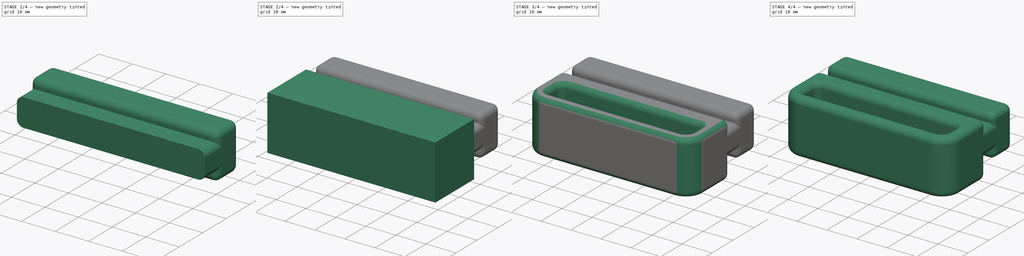
[diagram: build sequence overview — one tinted view per stage of 4, left to right]
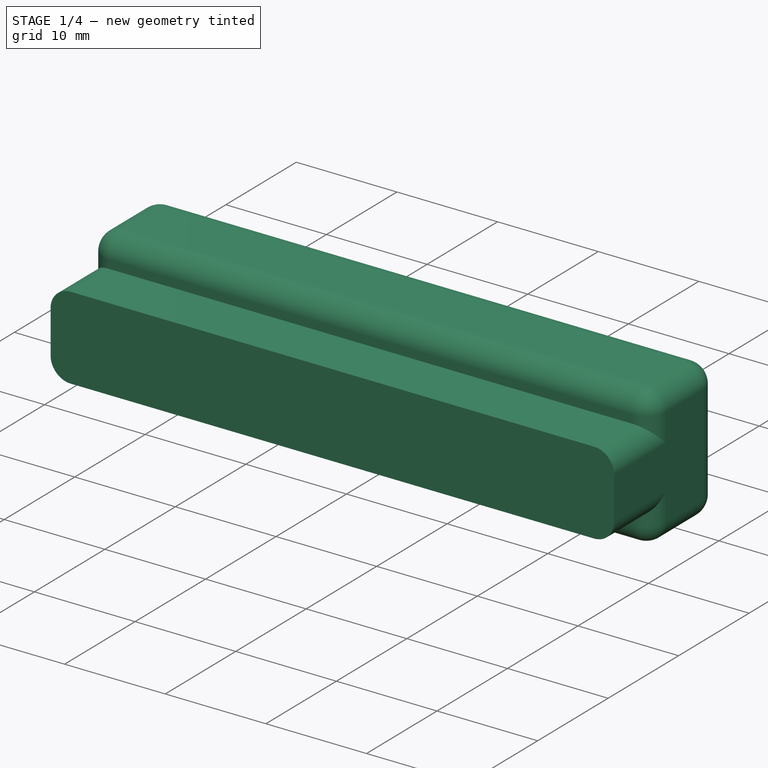
[diagram: stage 1 of 4 — iso view after this stage's code; geometry added in this stage tinted green]
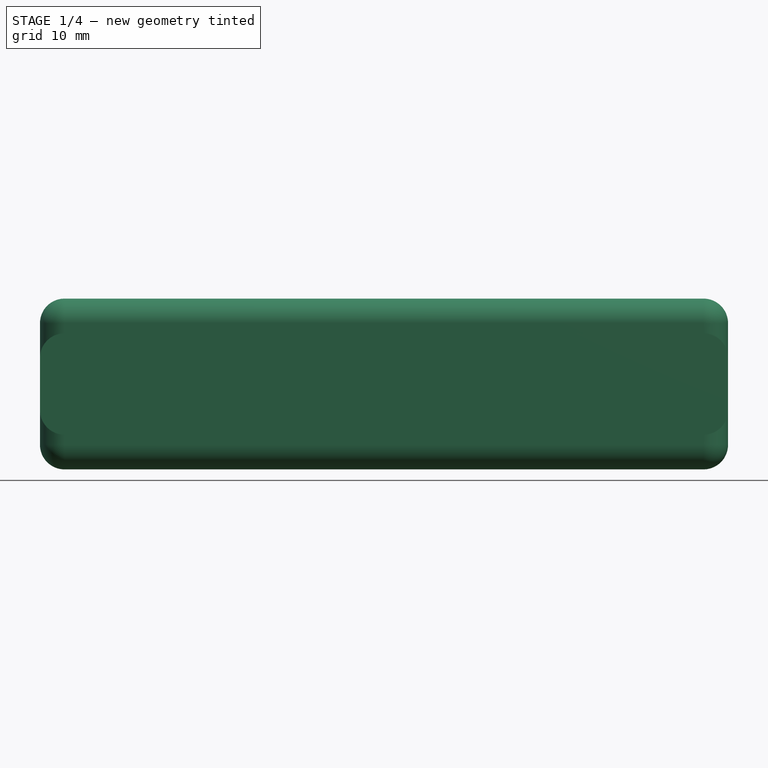
[diagram: stage 1 of 4 — front view after this stage's code; geometry added in this stage tinted green]
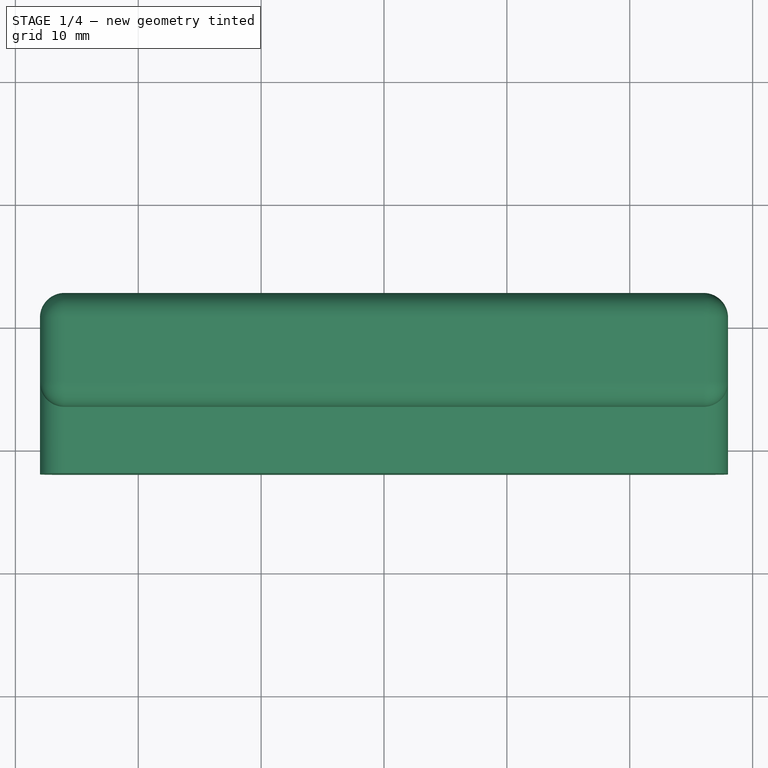
[diagram: stage 1 of 4 — top view after this stage's code; geometry added in this stage tinted green]
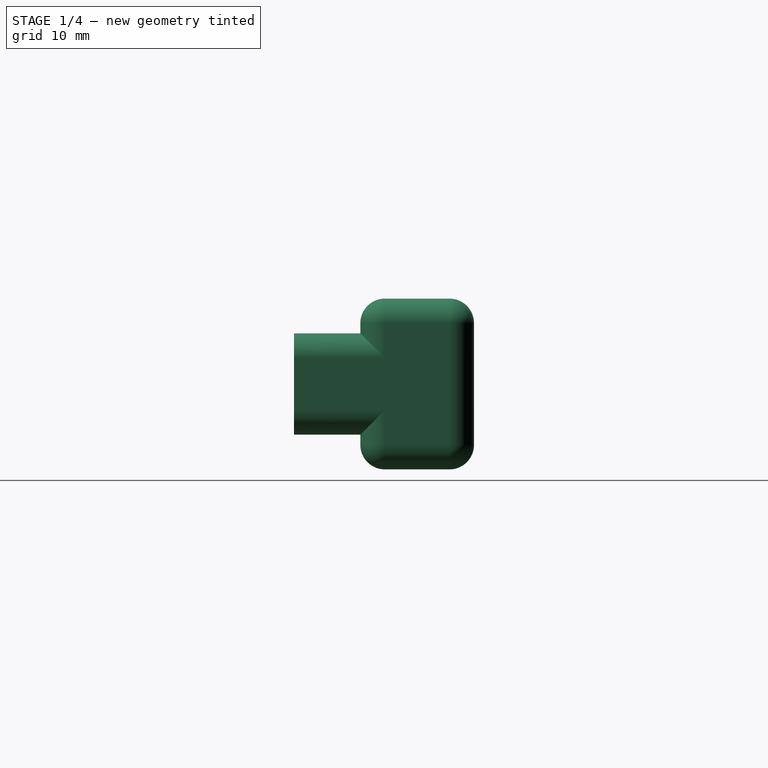
[diagram: stage 1 of 4 — right view after this stage's code; geometry added in this stage tinted green]
FCSTD DOCUMENT  (FreeCAD 0.21R33668 +26 (Git))
Label: FesseTouleRails
License: All rights reserved
LicenseURL: http://en.wikipedia.org/wiki/All_rights_reserved
objects: Sketcher::SketchObject×4, PartDesign::Fillet×3, PartDesign::Body×3, App::Part×3, PartDesign::Pad×2, App::Link×2, PartDesign::Pocket×2, Spreadsheet::Sheet×1, Part::MultiFuse×1, PartDesign::FeatureBase×1
note: 23 computed .brp shape members not serialized (recipe doc carries the construction recipe); baked Part::Feature solids carry a one-line shape summary decoded from their .brp

FEATURE [Spreadsheet::Sheet] Spreadsheet
  cells = A1='RailHeight; B1(RailHeight)=13.9; A2='RailDepth; B2(RailDepth)=9.25; A3='Width; B3(Width)=56; A4='GapDepth; B4(GapDepth)=3.4; A5='GapHeight; B5(GapHeight)=8.25; A6='Fillet; B6(Fillet)=2; A7='SocketWidth; B7(SocketWidth)=47.6; A8='SocketDepth; B8(SocketDepth)=7.9; A9='SocketOuterDepth; B9(SocketOuterDepth)=18.4; A10='SocketHeight; B10(SocketHeight)=18.1
FEATURE [Sketcher::SketchObject] Sketch  label="RailSketch"
  FullyConstrained = true
  MapMode = 5
  Placement = pos=(0,0,0) rot=(0.57735,0.57735,0.57735;2.0944rad)
  Support = -> [YZ_Plane001]
  expr: Constraints[22] = Spreadsheet.RailHeight
  expr: Constraints[23] = Spreadsheet.GapHeight
  expr: Constraints[24] = Spreadsheet.RailDepth
  expr: Constraints[25] = Spreadsheet.GapDepth + Spreadsheet.Fillet
  expr: Constraints[27] = Spreadsheet.Fillet
  sketch-geometry (10):
    g0: LineSegment StartX=-2 StartY=4.125 StartZ=0 EndX=3.4 EndY=4.125 EndZ=0
    g1: LineSegment StartX=3.4 StartY=4.125 StartZ=0 EndX=3.4 EndY=6.95 EndZ=0
    g2: LineSegment StartX=3.4 StartY=6.95 StartZ=0 EndX=12.65 EndY=6.95 EndZ=0
    g3: LineSegment StartX=12.65 StartY=6.95 StartZ=0 EndX=12.65 EndY=-6.95 EndZ=0
    g4: LineSegment StartX=12.65 StartY=-6.95 StartZ=0 EndX=3.4 EndY=-6.95 EndZ=0
    g5: LineSegment StartX=3.4 StartY=-6.95 StartZ=0 EndX=3.4 EndY=-4.125 EndZ=0
    g6: LineSegment StartX=3.4 StartY=-4.125 StartZ=0 EndX=-2 EndY=-4.125 EndZ=0
    g7: LineSegment StartX=-2 StartY=-4.125 StartZ=0 EndX=-2 EndY=4.125 EndZ=0
    g8: LineSegment StartX=0 StartY=0 StartZ=0 EndX=-2 EndY=4.125 EndZ=0
    g9: LineSegment StartX=0 StartY=0 StartZ=0 EndX=-2 EndY=-4.125 EndZ=0
  constraints (28):
    c: Horizontal(g0)
    c: Coincident(g0,g1)
    c: Vertical(g1)
    c: Coincident(g1,g2)
    c: Horizontal(g2)
    c: Coincident(g2,g3)
    c: Vertical(g3)
    c: Coincident(g3,g4)
    c: Horizontal(g4)
    c: Coincident(g4,g5)
    c: Vertical(g5)
    c: Coincident(g5,g6)
    c: Horizontal(g6)
    c: Coincident(g6,g7)
    c: Coincident(g7,g0)
    c: Equal(g1,g5)
    c: Equal(g0,g6)
    c: Coincident(g8,g-1)
    c: Coincident(g8,g0)
    c: Coincident(g9,g8)
    c: Coincident(g9,g6)
    c: Equal(g8,g9)
    c: DistanceY(g3,g3) = 13.9
    c: DistanceY(g5,g0) = 8.25
    c: DistanceX(g2,g2) = 9.25
    c: DistanceX(g6,g6) = 5.4
    c: Vertical(g7)
    c: DistanceX(g6,g8) = 2
FEATURE [PartDesign::Pad] Pad  label="RailPad"
  Direction = (1,-2e-16,3e-16)
  Length = 56
  Length2 = 10
  Midplane = true
  Placement = pos=(0,0,0) rot=(1,1,1;2.0944rad)
  Profile = -> Sketch
  ReferenceAxis = -> Sketch [N_Axis]
  Type = 0
  expr: Length = Spreadsheet.Width
FEATURE [PartDesign::Fillet] Fillet  label="RailFillet"
  Base = -> Pad [Edge9,Edge5,Edge8,Edge10,Edge13,Edge11,Edge12,Edge15,Edge16,Edge14,Edge19,Edge7,Edge18,Edge21,Edge22,Edge4,Edge3,Edge6]
  BaseFeature = -> Pad
  Placement = pos=(0,0,0) rot=(1,1,1;2.0944rad)
  Radius = 2
  SupportTransform = false
  UseAllEdges = false
  expr: Radius = Spreadsheet.Fillet
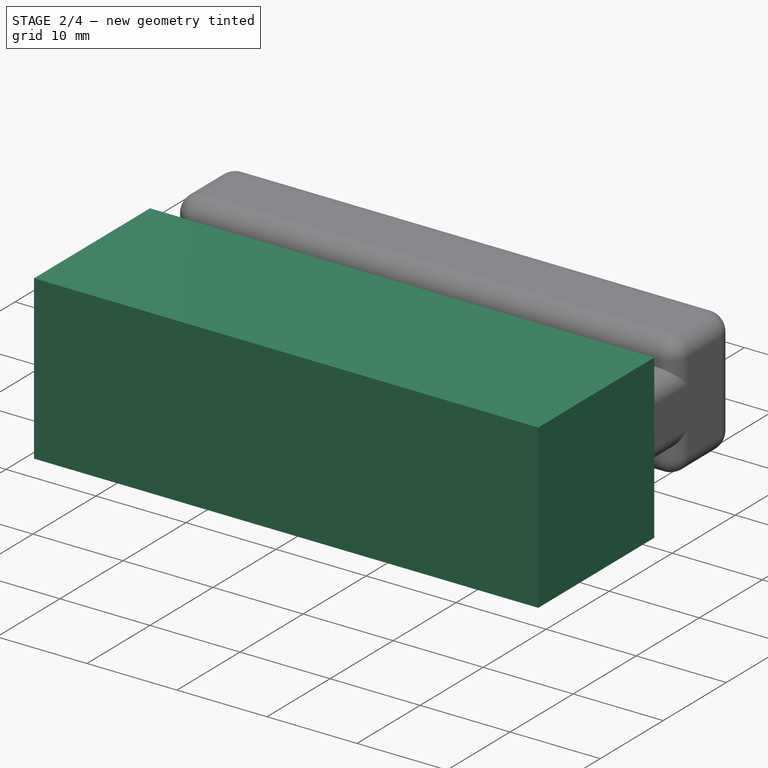
[diagram: stage 2 of 4 — iso view after this stage's code; geometry added in this stage tinted green]
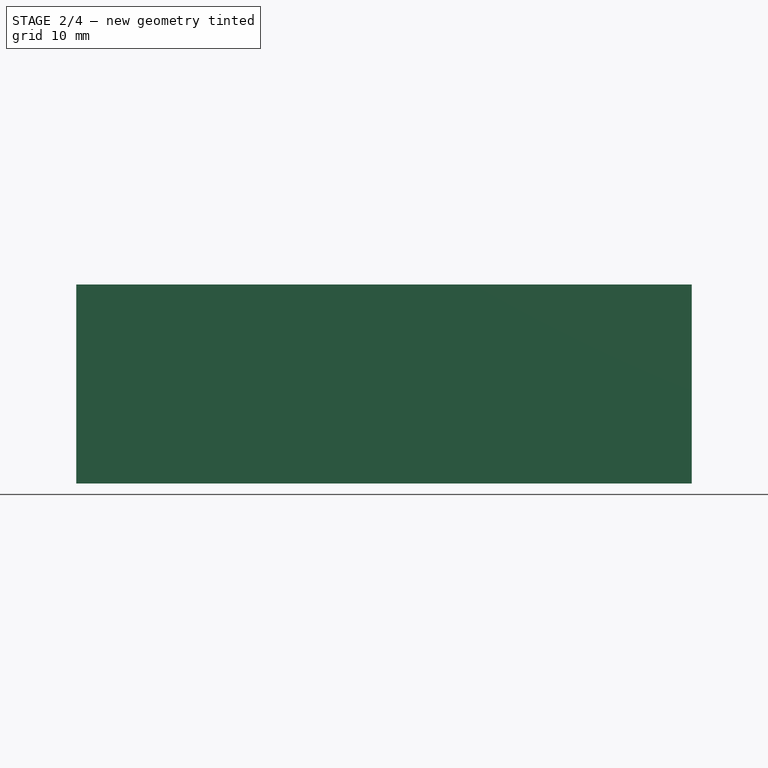
[diagram: stage 2 of 4 — front view after this stage's code; geometry added in this stage tinted green]
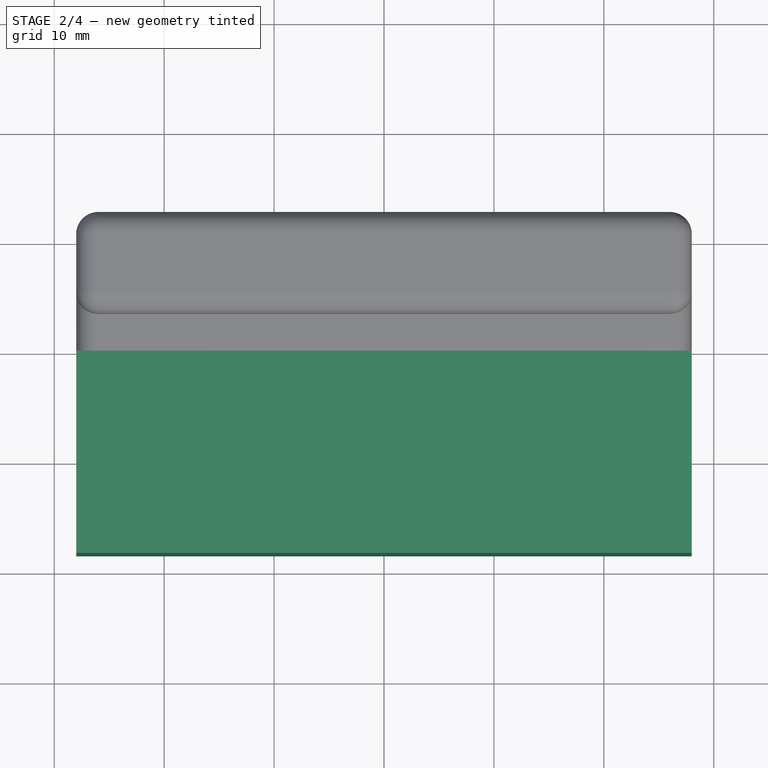
[diagram: stage 2 of 4 — top view after this stage's code; geometry added in this stage tinted green]
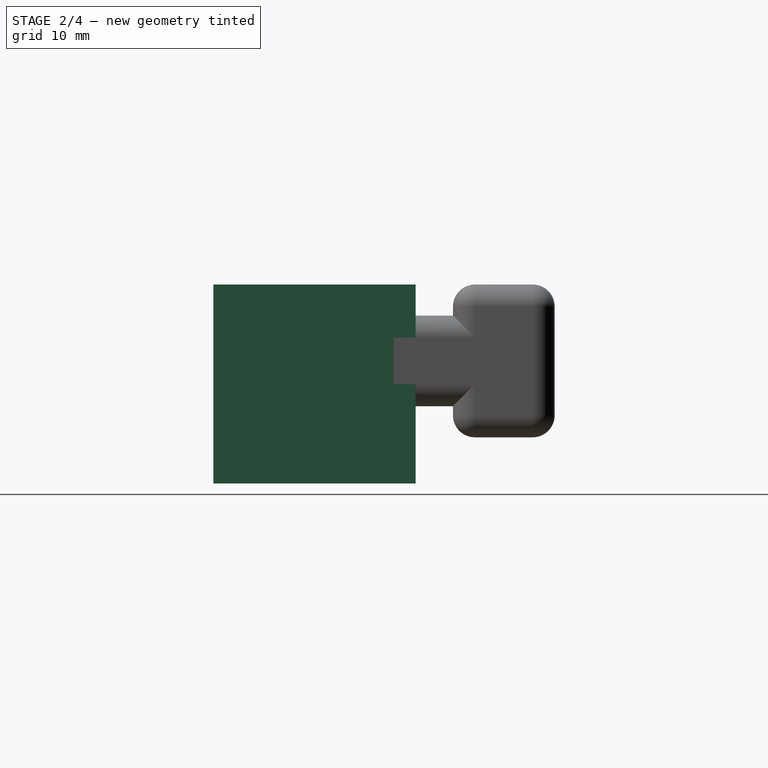
[diagram: stage 2 of 4 — right view after this stage's code; geometry added in this stage tinted green]
FEATURE [App::Link] Link  label="SocketRailBodyLink"
  LinkedObject = -> Body
FEATURE [Sketcher::SketchObject] Sketch001  label="SocketBodySketch"
  FullyConstrained = true
  MapMode = 5
  Placement = pos=(0,0,0) rot=(0.57735,0.57735,0.57735;2.0944rad)
  Support = -> [YZ_Plane003]
  expr: Constraints[10] = Spreadsheet.SocketHeight
  expr: Constraints[11] = Spreadsheet.RailHeight / 2
  expr: Constraints[9] = Spreadsheet.SocketOuterDepth
  sketch-geometry (4):
    g0: LineSegment StartX=0 StartY=6.95 StartZ=0 EndX=-18.4 EndY=6.95 EndZ=0
    g1: LineSegment StartX=-18.4 StartY=6.95 StartZ=0 EndX=-18.4 EndY=-11.15 EndZ=0
    g2: LineSegment StartX=-18.4 StartY=-11.15 StartZ=0 EndX=0 EndY=-11.15 EndZ=0
    g3: LineSegment StartX=0 StartY=-11.15 StartZ=0 EndX=0 EndY=6.95 EndZ=0
  constraints (12):
    c: Coincident(g0,g1)
    c: Coincident(g1,g2)
    c: Coincident(g2,g3)
    c: Coincident(g3,g0)
    c: Horizontal(g0)
    c: Horizontal(g2)
    c: Vertical(g1)
    c: Vertical(g3)
    c: PointOnObject(g0,g-2)
    c: DistanceX(g0,g0) = 18.4
    c: DistanceY(g1,g1) = 18.1
    c: DistanceY(g-1,g0) = 6.95
FEATURE [PartDesign::Pad] Pad001  label="SocketPad"
  Direction = (1,-2e-16,3e-16)
  Length = 56
  Length2 = 10
  Midplane = true
  Placement = pos=(0,0,0) rot=(1,1,1;2.0944rad)
  Profile = -> Sketch001
  ReferenceAxis = -> Sketch001 [N_Axis]
  Type = 0
  expr: Length = Spreadsheet.Width
FEATURE [PartDesign::Body] Body002  label="SocketAndRailBody"
  BaseFeature = -> Fusion
  Group = -> [BaseFeature]
  Origin = -> Origin004
  Tip = -> BaseFeature
FEATURE [App::Part] Part001  label="SocketAndRail"
  Group = -> [Body001,Link,Fusion,Body002]
  Origin = -> Origin002
FEATURE [App::Link] Link001  label="ThreadsRailBodyLink"
  LinkedObject = -> Body
FEATURE [App::Part] Part002  label="ThreadsOnRail"
  Group = -> [Link001]
  Origin = -> Origin005
FEATURE [Sketcher::SketchObject] Sketch003  label="ThreadPocketScketch"
  FullyConstrained = true
  MapMode = 5
  Placement = pos=(-9e-16,-2,7e-16) rot=(-0.57735,-0.57735,0.57735;4.18879rad)
  Support = -> [Fillet]
  sketch-geometry (2):
    g0: Circle CenterX=0 CenterY=20 CenterZ=0 NormalX=0 NormalY=0 NormalZ=1 AngleXU=0 Radius=2.1
    g1: Circle CenterX=0 CenterY=-20 CenterZ=0 NormalX=0 NormalY=0 NormalZ=1 AngleXU=0 Radius=2.1
  constraints (5):
    c: PointOnObject(g0,g-2)
    c: Equal(g0,g1)
    c: Diameter(g0) = 4.2
    c: Symmetric(g0,g1,g-1)
    c: DistanceY(g1,g0) = 40
FEATURE [PartDesign::Pocket] Pocket001
  BaseFeature = -> Fillet
  Direction = (4e-16,1,-2e-16)
  Length = 10
  Length2 = 5
  Placement = pos=(0,0,0) rot=(1,1,1;2.0944rad)
  Profile = -> Sketch003
  ReferenceAxis = -> Sketch003 [N_Axis]
  Type = 0
FEATURE [PartDesign::Body] Body  label="RailBody"
  Group = -> [Sketch,Pad,Fillet,Sketch003,Pocket001]
  Origin = -> Origin001
  Tip = -> Pocket001
FEATURE [App::Part] Part  label="Rail"
  Group = -> [Body]
  Origin = -> Origin
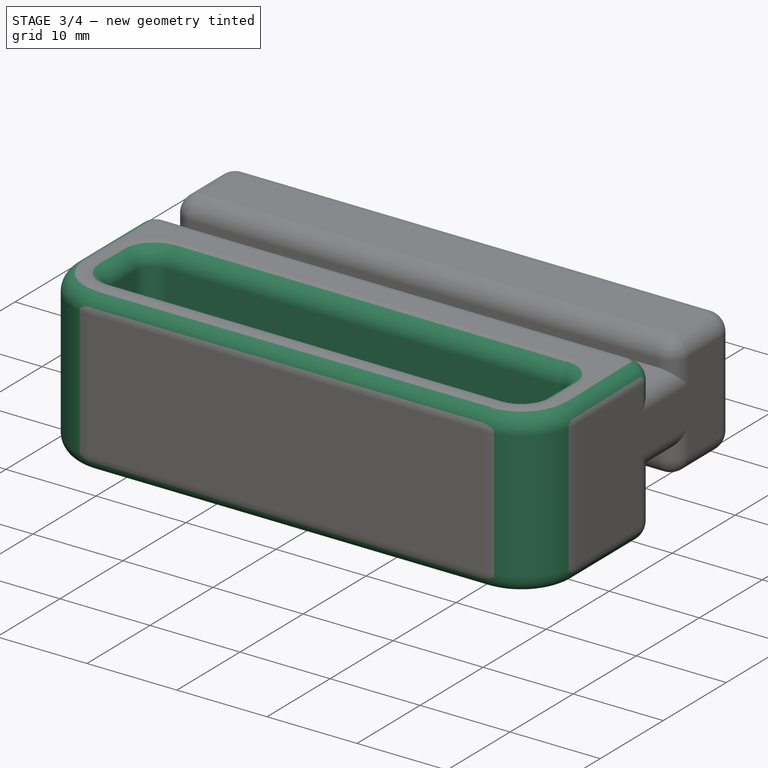
[diagram: stage 3 of 4 — iso view after this stage's code; geometry added in this stage tinted green]
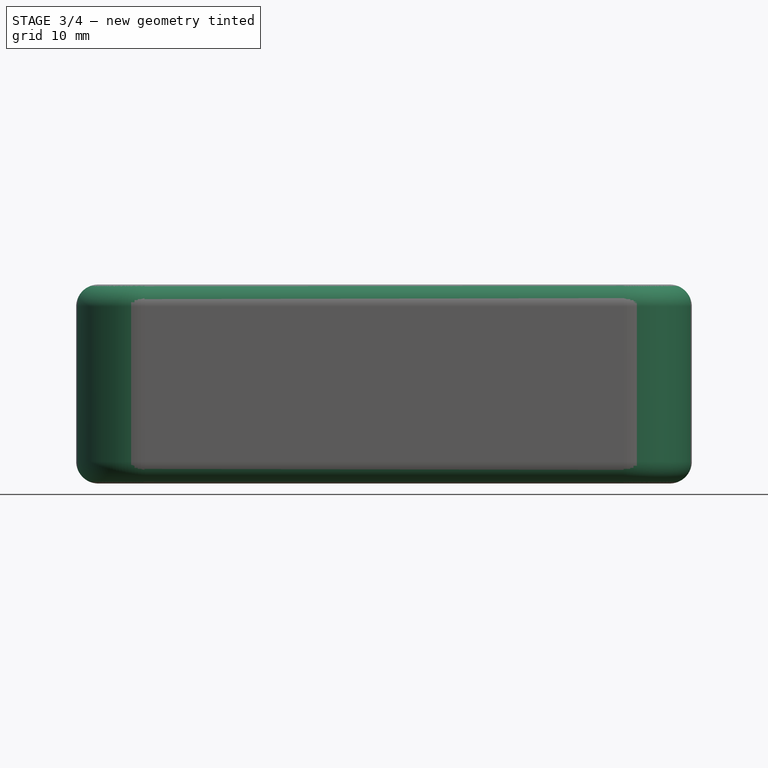
[diagram: stage 3 of 4 — front view after this stage's code; geometry added in this stage tinted green]
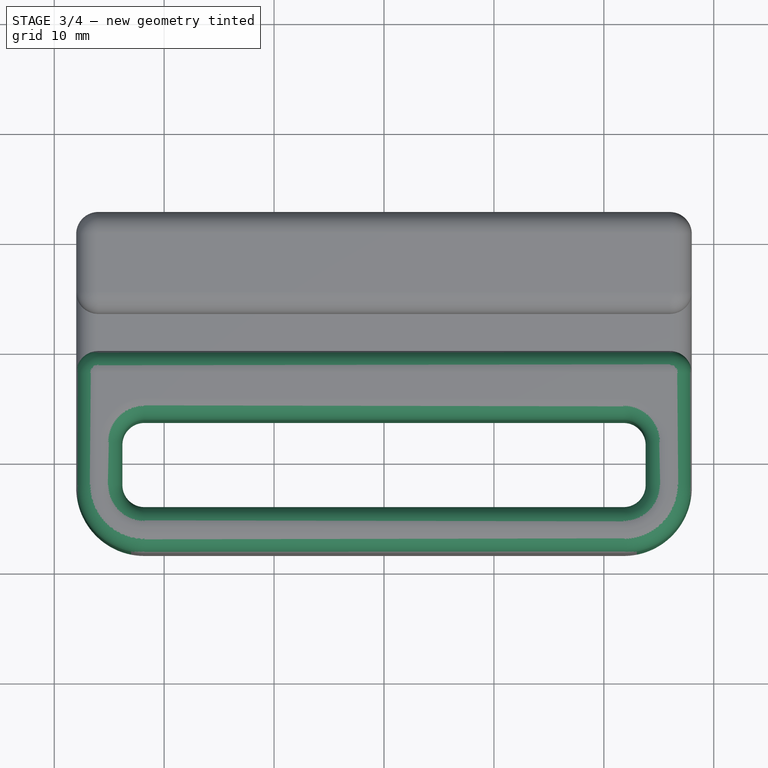
[diagram: stage 3 of 4 — top view after this stage's code; geometry added in this stage tinted green]
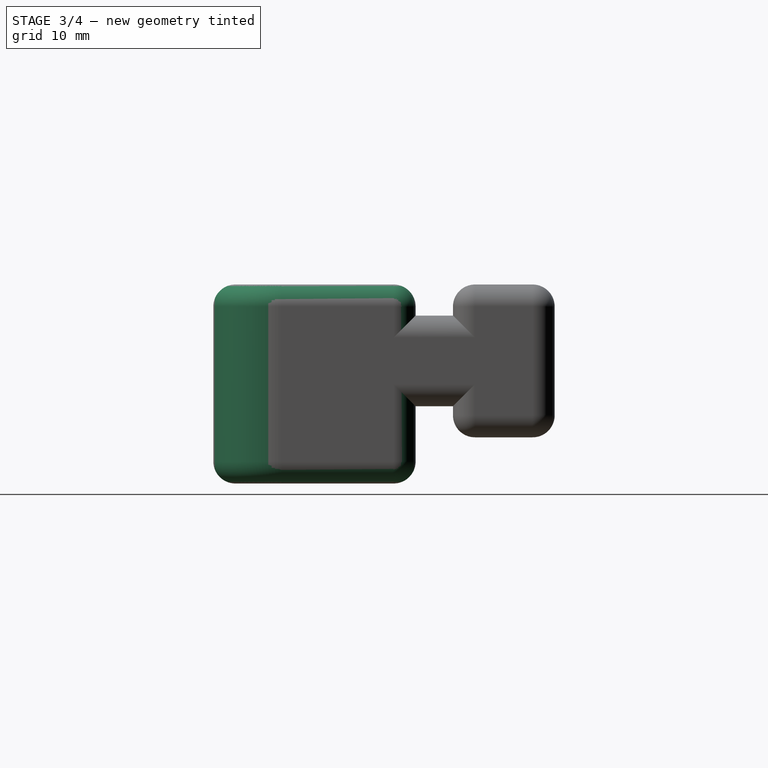
[diagram: stage 3 of 4 — right view after this stage's code; geometry added in this stage tinted green]
FEATURE [Sketcher::SketchObject] Sketch002  label="SocketHoleSketch"
  ExternalGeometry = -> [Pad001]
  FullyConstrained = true
  MapMode = 5
  Placement = pos=(-2.7e-15,3.9e-15,6.95) rot=(0,0,-1;1.5708rad)
  Support = -> [Pad001]
  expr: Constraints[13] = Spreadsheet.SocketDepth
  expr: Constraints[14] = Spreadsheet.SocketWidth
  expr: Constraints[16] = .Constraints.SocketDistanceToEdge
  sketch-geometry (6):
    g0: LineSegment StartX=6.3 StartY=23.8 StartZ=0 EndX=14.2 EndY=23.8 EndZ=0
    g1: LineSegment StartX=14.2 StartY=23.8 StartZ=0 EndX=14.2 EndY=-23.8 EndZ=0
    g2: LineSegment StartX=14.2 StartY=-23.8 StartZ=0 EndX=6.3 EndY=-23.8 EndZ=0
    g3: LineSegment StartX=6.3 StartY=-23.8 StartZ=0 EndX=6.3 EndY=23.8 EndZ=0
    g4: LineSegment StartX=6.3 StartY=23.8 StartZ=0 EndX=1.8e-15 EndY=0 EndZ=0
    g5: LineSegment StartX=6.3 StartY=-23.8 StartZ=0 EndX=1.8e-15 EndY=0 EndZ=0
  constraints (17):
    c: Coincident(g0,g1)
    c: Coincident(g1,g2)
    c: Coincident(g2,g3)
    c: Coincident(g3,g0)
    c: Horizontal(g0)
    c: Horizontal(g2)
    c: Vertical(g1)
    c: Vertical(g3)
    c: Coincident(g4,g0)
    c: Coincident(g4,g-1)
    c: Coincident(g5,g2)
    c: Coincident(g5,g4)
    c: Equal(g4,g5)
    c: DistanceX(g0,g0) = 7.9
    c: DistanceY(g1,g1) = 47.6
    c: DistanceY(g0,g-3) = 4.2  'SocketDistanceToEdge'
    c: DistanceX(g0,g-3) = 4.2
FEATURE [PartDesign::Pocket] Pocket  label="SocketPocket"
  BaseFeature = -> Pad001
  Direction = (4e-16,-6e-16,-1)
  Length = 5
  Length2 = 5
  Placement = pos=(0,0,0) rot=(1,1,1;2.0944rad)
  Profile = -> Sketch002
  ReferenceAxis = -> Sketch002 [N_Axis]
  Type = 1
FEATURE [PartDesign::Fillet] Fillet001  label="SocketFrontFillet"
  Base = -> Pocket [Edge14,Edge12]
  BaseFeature = -> Pocket
  Placement = pos=(0,0,0) rot=(1,1,1;2.0944rad)
  Radius = 6.2
  SupportTransform = false
  UseAllEdges = false
  expr: Radius = (Spreadsheet.Width - Spreadsheet.SocketWidth) / 2 + Spreadsheet.Fillet
FEATURE [PartDesign::Fillet] Fillet002
  Base = -> Fillet001 [Edge9,Edge10,Edge7,Edge8,Edge28,Edge1,Edge2,Edge4,Edge6,Edge5,Edge3,Edge21,Edge22,Edge19,Edge15,Edge17,Edge12,Edge13,Edge16,Edge30,Edge24,Edge27,Edge23,Edge29,Edge26,Edge25]
  BaseFeature = -> Fillet001
  Placement = pos=(0,0,0) rot=(1,1,1;2.0944rad)
  Radius = 2
  SupportTransform = false
  UseAllEdges = false
  expr: Radius = Spreadsheet.Fillet
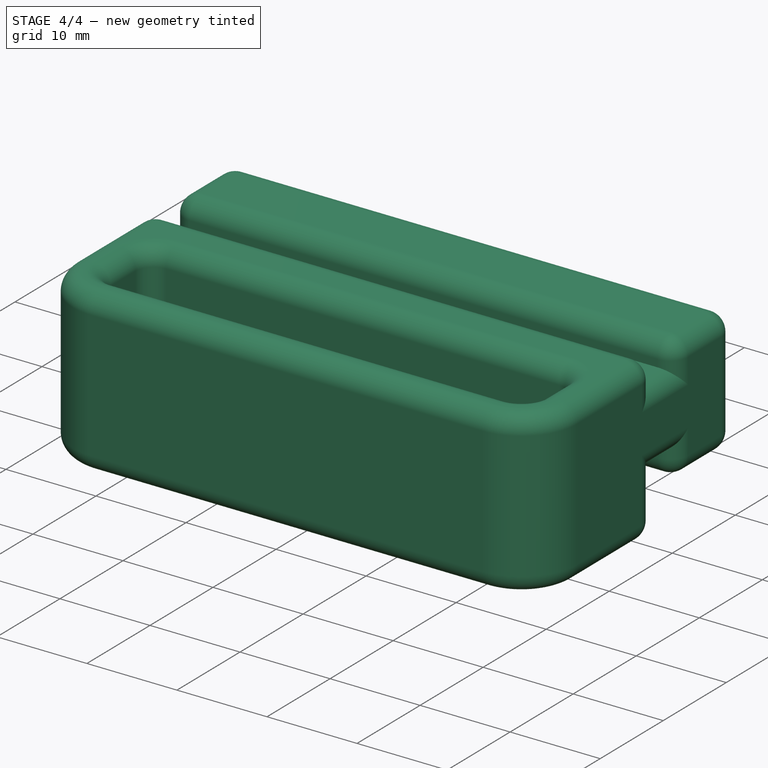
[diagram: stage 4 of 4 — iso view after this stage's code; geometry added in this stage tinted green]
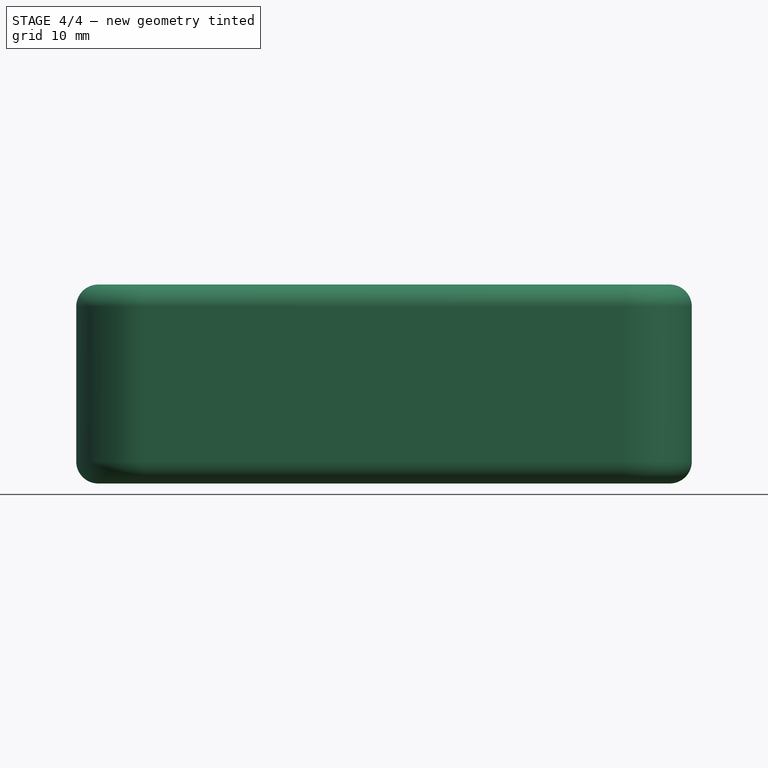
[diagram: stage 4 of 4 — front view after this stage's code; geometry added in this stage tinted green]
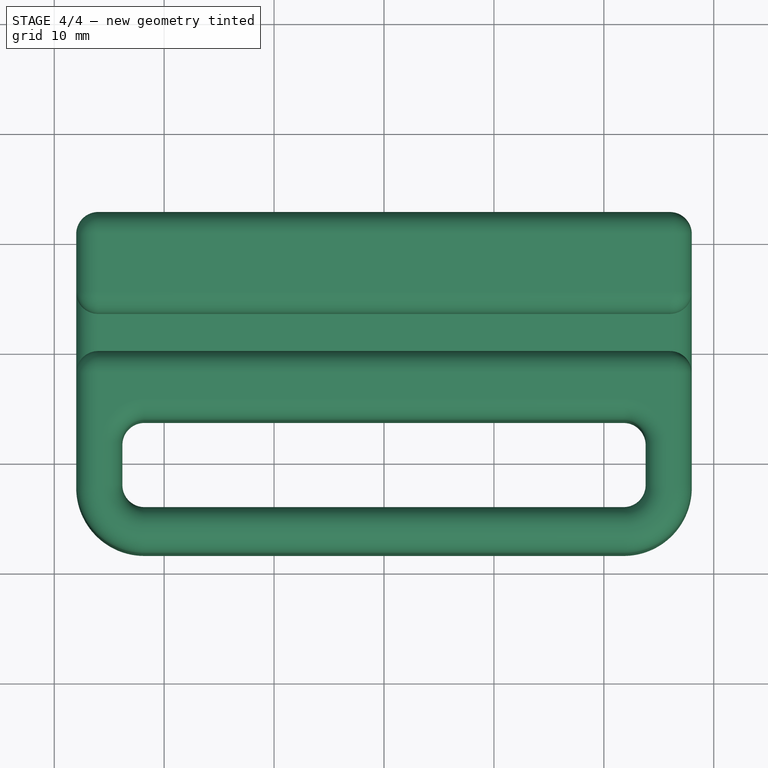
[diagram: stage 4 of 4 — top view after this stage's code; geometry added in this stage tinted green]
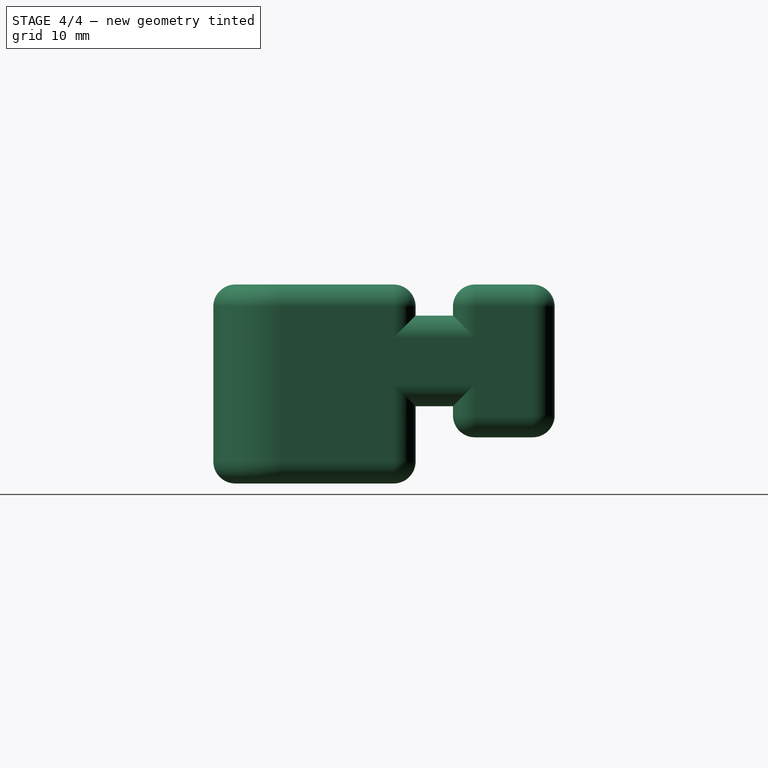
[diagram: stage 4 of 4 — right view after this stage's code; geometry added in this stage tinted green]
FEATURE [PartDesign::Body] Body001  label="SocketBody"
  Group = -> [Sketch001,Pad001,Sketch002,Pocket,Fillet001,Fillet002]
  Origin = -> Origin003
  Tip = -> Fillet002
FEATURE [Part::MultiFuse] Fusion  label="SocketAndRailFusion"
  Shapes = -> [Link,Body001]
FEATURE [PartDesign::FeatureBase] BaseFeature
  BaseFeature = -> Fusion
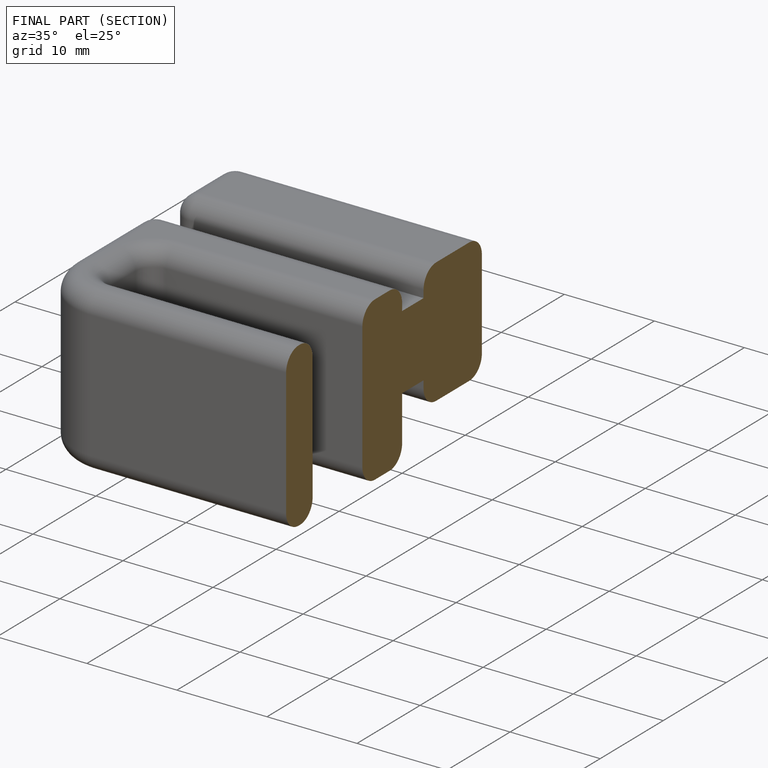
[diagram: finished part — half-section view (interior)]
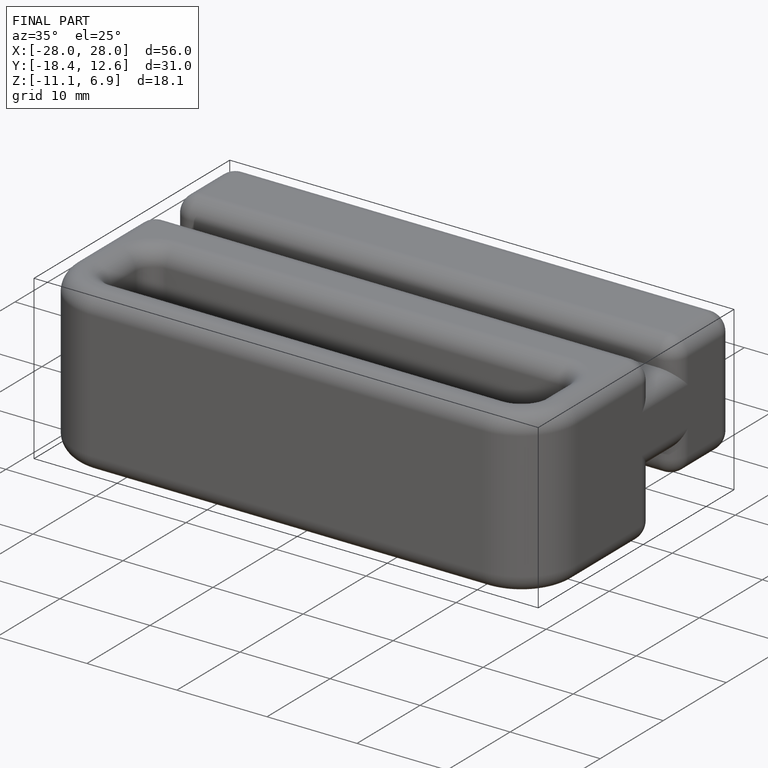
[diagram: finished part — iso view with bounding-box wireframe]
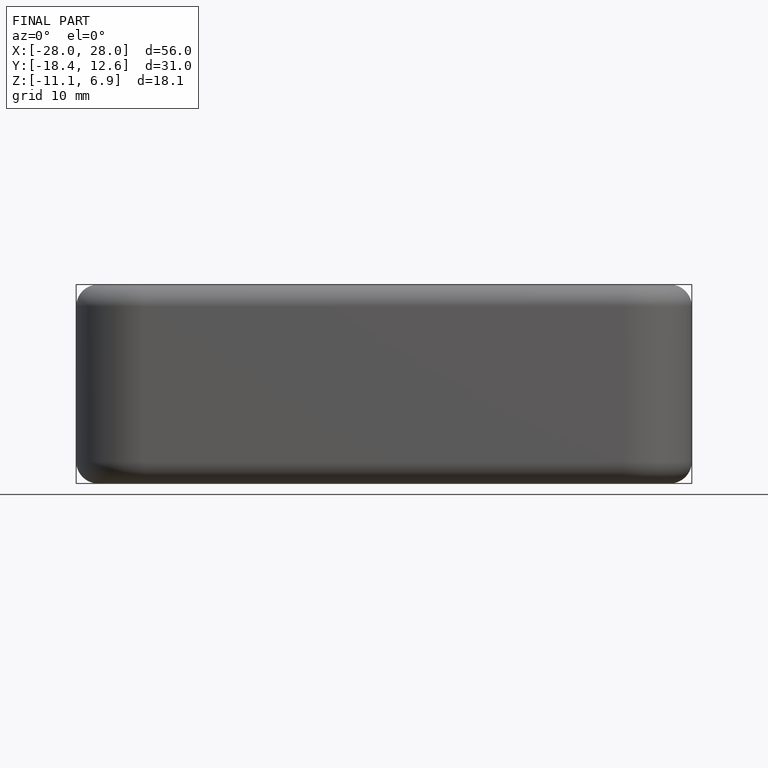
[diagram: finished part — front view with bounding-box wireframe]
